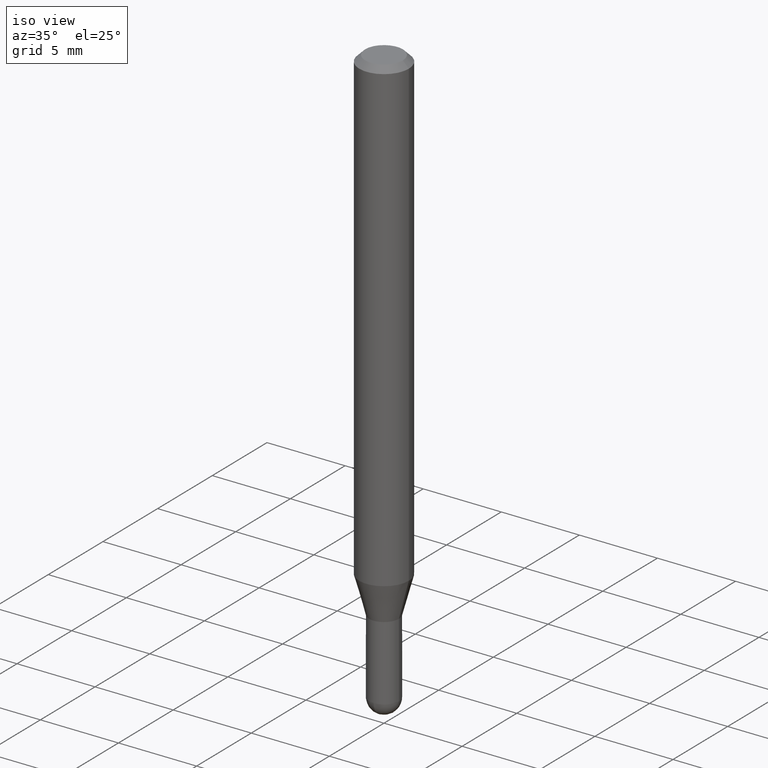
[diagram: clean part render]
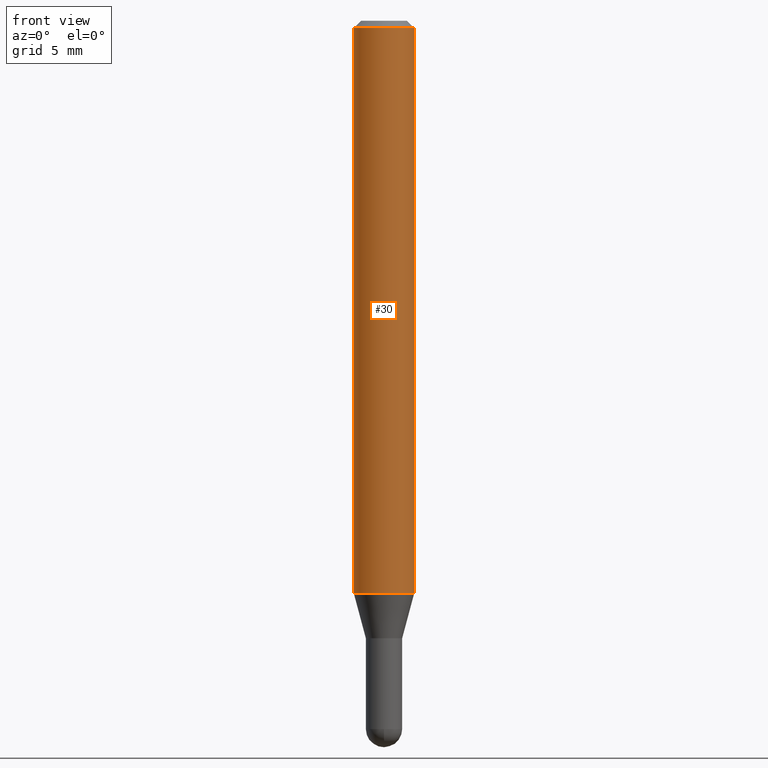
[diagram: tour spotlight — one face highlighted and labeled with its STEP entity id]
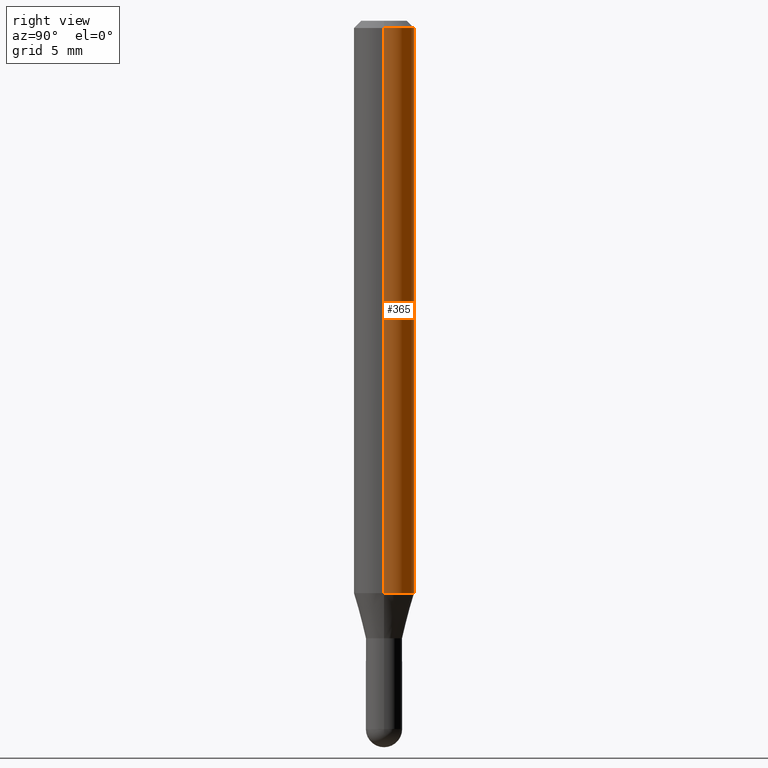
[diagram: tour spotlight — one face highlighted and labeled with its STEP entity id]
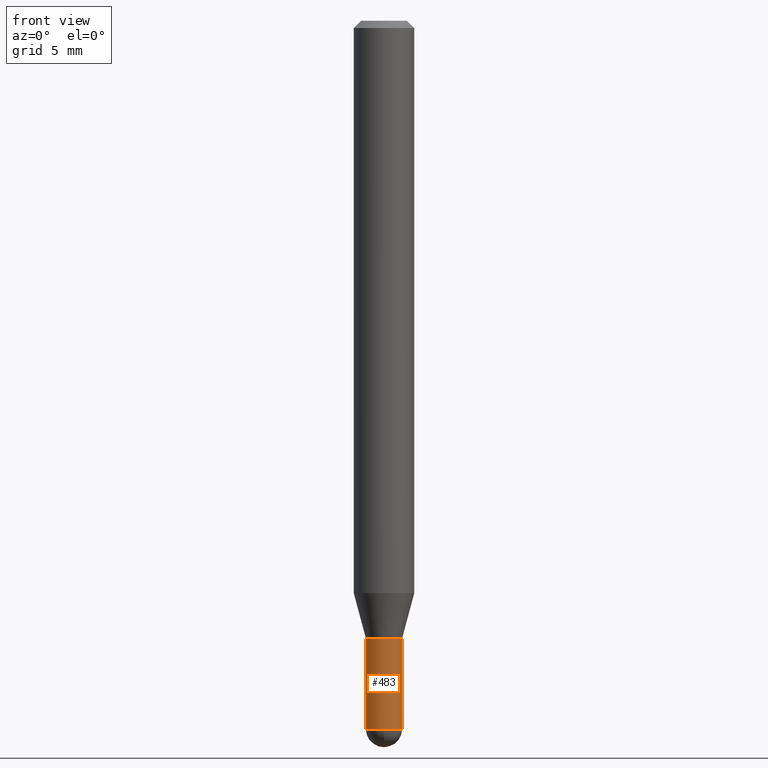
[diagram: tour spotlight — one face highlighted and labeled with its STEP entity id]
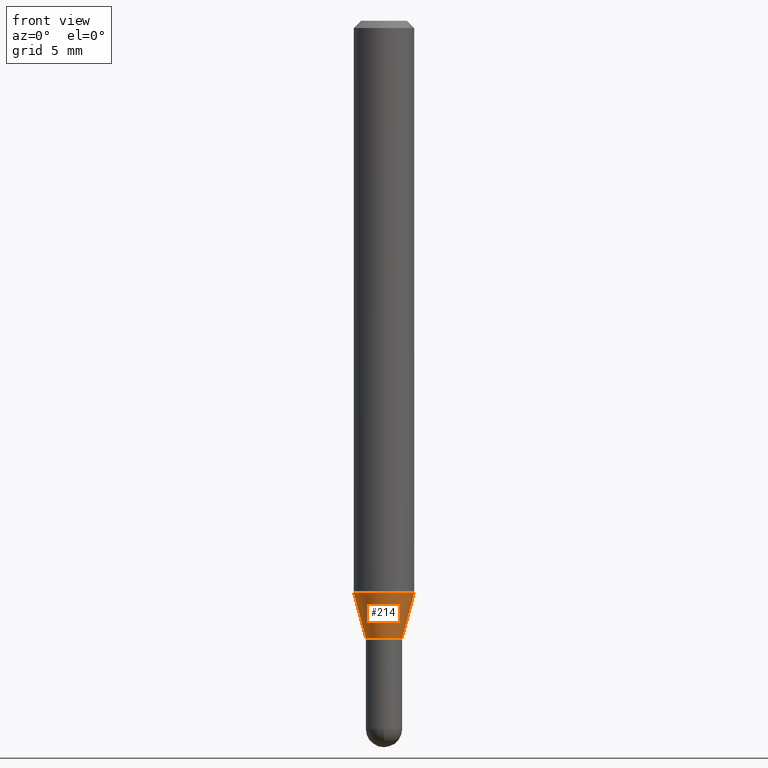
[diagram: tour spotlight — one face highlighted and labeled with its STEP entity id]
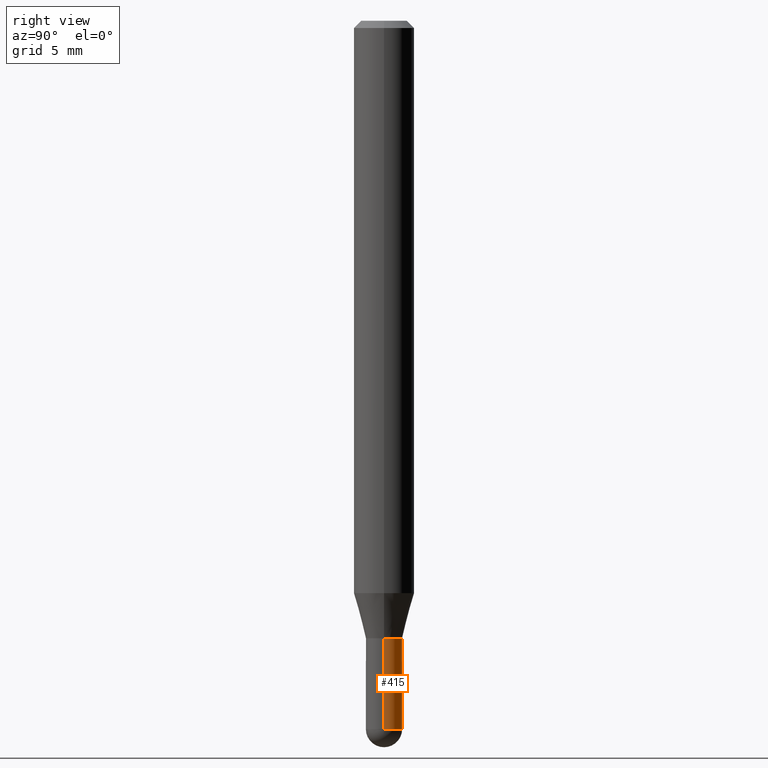
[diagram: tour spotlight — one face highlighted and labeled with its STEP entity id]
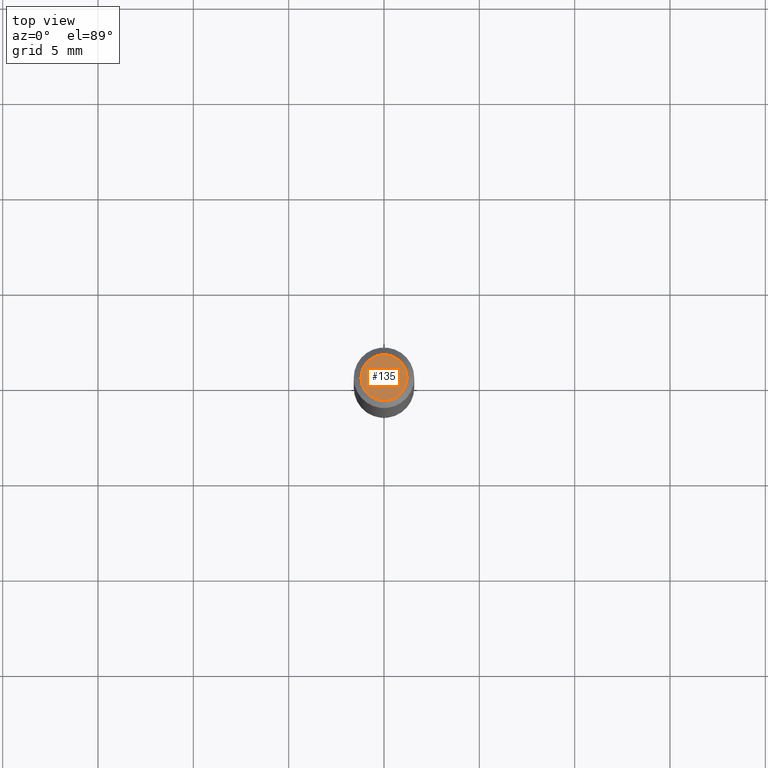
[diagram: tour spotlight — one face highlighted and labeled with its STEP entity id]
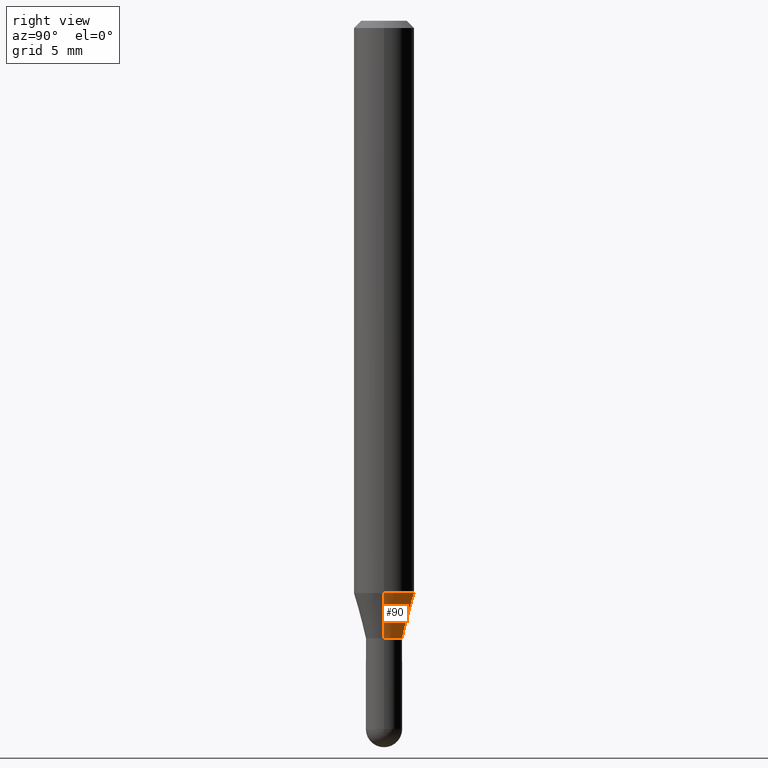
[diagram: tour spotlight — one face highlighted and labeled with its STEP entity id]
A machine part: a face-by-face anatomy tour. The part has 17 B-rep faces; the first image is the clean iso view, then the 7 largest visible faces are spotlighted one at a time (largest first), each with its STEP entity span.

Face 1 — front view, entity #30. In plain terms, the highlighted cylindrical surface (edge-blend (fillet) strip) has radius 1.5875 mm, axis along (-0, 0, 1).
Definition (entity closure, byte-faithful):
#9 = LINE ( 'NONE', #508, #94 ) ;
#20 = ORIENTED_EDGE ( 'NONE', *, *, #202, .F. ) ;
#30 = ADVANCED_FACE ( 'NONE', ( #337 ), #335, .T. ) ;
#36 = DIRECTION ( 'NONE',  ( -2.445468806185136597E-29, 3.491481338843145583E-15, 1.000000000000000000 ) ) ;
#40 = CIRCLE ( 'NONE', #102, 0.06250000000000000000 ) ;
#42 = DIRECTION ( 'NONE',  ( 1.000000000000000000, -6.982962677686266711E-15, 4.876176775795935793E-29 ) ) ;
#75 = CARTESIAN_POINT ( 'NONE',  ( 0.000000000000000000, 0.000000000000000000, 0.000000000000000000 ) ) ;
#94 = VECTOR ( 'NONE', #197, 39.37007874015748143 ) ;
#102 = AXIS2_PLACEMENT_3D ( 'NONE', #313, #119, #435 ) ;
#109 = CARTESIAN_POINT ( 'NONE',  ( 0.06250000000000000000, -4.888073874380391431E-16, -0.01500000000000006710 ) ) ;
#113 = EDGE_CURVE ( 'NONE', #255, #326, #149, .T. ) ;
#114 = DIRECTION ( 'NONE',  ( -2.445468806185136597E-29, 3.491481338843145583E-15, 1.000000000000000000 ) ) ;
#116 = CARTESIAN_POINT ( 'NONE',  ( 3.668203209277721290E-31, -5.237222008264741202E-17, -0.01500000000000006710 ) ) ;
#119 = DIRECTION ( 'NONE',  ( -2.445468806185136597E-29, 3.491481338843145583E-15, 1.000000000000000000 ) ) ;
#123 = CIRCLE ( 'NONE', #241, 0.06250000000000000000 ) ;
#133 = ORIENTED_EDGE ( 'NONE', *, *, #113, .T. ) ;
#149 = LINE ( 'NONE', #307, #285 ) ;
#162 = EDGE_CURVE ( 'NONE', #501, #326, #123, .T. ) ;
#197 = DIRECTION ( 'NONE',  ( -2.445468806185136877E-29, 3.491481338843145188E-15, 1.000000000000000000 ) ) ;
#202 = EDGE_CURVE ( 'NONE', #280, #501, #9, .T. ) ;
#228 = DIRECTION ( 'NONE',  ( -2.445468806185136877E-29, 3.491481338843145188E-15, 1.000000000000000000 ) ) ;
#241 = AXIS2_PLACEMENT_3D ( 'NONE', #116, #114, #416 ) ;
#255 = VERTEX_POINT ( 'NONE', #457 ) ;
#264 = CARTESIAN_POINT ( 'NONE',  ( -0.06250000000000000000, -1.645036431825758273E-15, -0.01500000000000006710 ) ) ;
#280 = VERTEX_POINT ( 'NONE', #324 ) ;
#285 = VECTOR ( 'NONE', #228, 39.37007874015748143 ) ;
#307 = CARTESIAN_POINT ( 'NONE',  ( 0.06250000000000000000, -4.364351673553916694E-16, 3.047610484872459871E-30 ) ) ;
#313 = CARTESIAN_POINT ( 'NONE',  ( 2.889807382060866226E-29, -4.125879063268994698E-15, -1.181698729810782167 ) ) ;
#324 = CARTESIAN_POINT ( 'NONE',  ( -0.06250000000000000000, -3.681789853418932082E-15, -1.181698729810782167 ) ) ;
#326 = VERTEX_POINT ( 'NONE', #109 ) ;
#335 = CYLINDRICAL_SURFACE ( 'NONE', #497, 0.06250000000000000000 ) ;
#337 = FACE_OUTER_BOUND ( 'NONE', #484, .T. ) ;
#349 = ORIENTED_EDGE ( 'NONE', *, *, #162, .F. ) ;
#390 = ORIENTED_EDGE ( 'NONE', *, *, #409, .T. ) ;
#409 = EDGE_CURVE ( 'NONE', #280, #255, #40, .T. ) ;
#416 = DIRECTION ( 'NONE',  ( 1.000000000000000000, -6.982962677686266711E-15, 0.000000000000000000 ) ) ;
#435 = DIRECTION ( 'NONE',  ( 1.000000000000000000, -6.982962677686270655E-15, 0.000000000000000000 ) ) ;
#457 = CARTESIAN_POINT ( 'NONE',  ( 0.06250000000000000000, -4.562314230624385579E-15, -1.181698729810782167 ) ) ;
#484 = EDGE_LOOP ( 'NONE', ( #20, #390, #133, #349 ) ) ;
#497 = AXIS2_PLACEMENT_3D ( 'NONE', #75, #36, #42 ) ;
#501 = VERTEX_POINT ( 'NONE', #264 ) ;
#508 = CARTESIAN_POINT ( 'NONE',  ( -0.06250000000000000000, 4.440892098500626162E-16, -3.074334431409316114E-30 ) ) ;

Face 2 — right view, entity #365. In plain terms, the highlighted cylindrical surface (edge-blend (fillet) strip) has radius 1.5875 mm, axis along (-0, 0, 1).
Definition (entity closure, byte-faithful):
#9 = LINE ( 'NONE', #508, #94 ) ;
#22 = EDGE_CURVE ( 'NONE', #255, #280, #276, .T. ) ;
#23 = ORIENTED_EDGE ( 'NONE', *, *, #113, .F. ) ;
#33 = ORIENTED_EDGE ( 'NONE', *, *, #127, .F. ) ;
#37 = DIRECTION ( 'NONE',  ( 1.000000000000000000, -6.982962677686270655E-15, 0.000000000000000000 ) ) ;
#53 = ORIENTED_EDGE ( 'NONE', *, *, #22, .T. ) ;
#79 = CARTESIAN_POINT ( 'NONE',  ( 2.889807382060866226E-29, -4.125879063268994698E-15, -1.181698729810782167 ) ) ;
#81 = FACE_OUTER_BOUND ( 'NONE', #321, .T. ) ;
#94 = VECTOR ( 'NONE', #197, 39.37007874015748143 ) ;
#109 = CARTESIAN_POINT ( 'NONE',  ( 0.06250000000000000000, -4.888073874380391431E-16, -0.01500000000000006710 ) ) ;
#113 = EDGE_CURVE ( 'NONE', #255, #326, #149, .T. ) ;
#118 = CIRCLE ( 'NONE', #358, 0.06250000000000000000 ) ;
#127 = EDGE_CURVE ( 'NONE', #326, #501, #118, .T. ) ;
#149 = LINE ( 'NONE', #307, #285 ) ;
#163 = CARTESIAN_POINT ( 'NONE',  ( 0.000000000000000000, 0.000000000000000000, 0.000000000000000000 ) ) ;
#193 = CYLINDRICAL_SURFACE ( 'NONE', #317, 0.06250000000000000000 ) ;
#197 = DIRECTION ( 'NONE',  ( -2.445468806185136877E-29, 3.491481338843145188E-15, 1.000000000000000000 ) ) ;
#198 = DIRECTION ( 'NONE',  ( -2.445468806185136597E-29, 3.491481338843145583E-15, 1.000000000000000000 ) ) ;
#202 = EDGE_CURVE ( 'NONE', #280, #501, #9, .T. ) ;
#228 = DIRECTION ( 'NONE',  ( -2.445468806185136877E-29, 3.491481338843145188E-15, 1.000000000000000000 ) ) ;
#253 = AXIS2_PLACEMENT_3D ( 'NONE', #79, #198, #37 ) ;
#255 = VERTEX_POINT ( 'NONE', #457 ) ;
#264 = CARTESIAN_POINT ( 'NONE',  ( -0.06250000000000000000, -1.645036431825758273E-15, -0.01500000000000006710 ) ) ;
#265 = DIRECTION ( 'NONE',  ( 1.000000000000000000, -6.982962677686266711E-15, 0.000000000000000000 ) ) ;
#276 = CIRCLE ( 'NONE', #253, 0.06250000000000000000 ) ;
#280 = VERTEX_POINT ( 'NONE', #324 ) ;
#285 = VECTOR ( 'NONE', #228, 39.37007874015748143 ) ;
#307 = CARTESIAN_POINT ( 'NONE',  ( 0.06250000000000000000, -4.364351673553916694E-16, 3.047610484872459871E-30 ) ) ;
#308 = DIRECTION ( 'NONE',  ( 1.000000000000000000, -6.982962677686266711E-15, 4.876176775795935793E-29 ) ) ;
#317 = AXIS2_PLACEMENT_3D ( 'NONE', #163, #477, #308 ) ;
#321 = EDGE_LOOP ( 'NONE', ( #53, #397, #33, #23 ) ) ;
#324 = CARTESIAN_POINT ( 'NONE',  ( -0.06250000000000000000, -3.681789853418932082E-15, -1.181698729810782167 ) ) ;
#326 = VERTEX_POINT ( 'NONE', #109 ) ;
#358 = AXIS2_PLACEMENT_3D ( 'NONE', #465, #384, #265 ) ;
#365 = ADVANCED_FACE ( 'NONE', ( #81 ), #193, .T. ) ;
#384 = DIRECTION ( 'NONE',  ( -2.445468806185136597E-29, 3.491481338843145583E-15, 1.000000000000000000 ) ) ;
#397 = ORIENTED_EDGE ( 'NONE', *, *, #202, .T. ) ;
#457 = CARTESIAN_POINT ( 'NONE',  ( 0.06250000000000000000, -4.562314230624385579E-15, -1.181698729810782167 ) ) ;
#465 = CARTESIAN_POINT ( 'NONE',  ( 3.668203209277721290E-31, -5.237222008264741202E-17, -0.01500000000000006710 ) ) ;
#477 = DIRECTION ( 'NONE',  ( -2.445468806185136597E-29, 3.491481338843145583E-15, 1.000000000000000000 ) ) ;
#501 = VERTEX_POINT ( 'NONE', #264 ) ;
#508 = CARTESIAN_POINT ( 'NONE',  ( -0.06250000000000000000, 4.440892098500626162E-16, -3.074334431409316114E-30 ) ) ;

Face 3 — front view, entity #483. In plain terms, the highlighted cylindrical surface (edge-blend (fillet) strip) has radius 0.9525 mm, axis along (-0, 0, 1).
Definition (entity closure, byte-faithful):
#12 = ORIENTED_EDGE ( 'NONE', *, *, #429, .T. ) ;
#16 = DIRECTION ( 'NONE',  ( 1.000000000000000000, -6.982962677686280121E-15, 0.000000000000000000 ) ) ;
#31 = VERTEX_POINT ( 'NONE', #153 ) ;
#44 = CARTESIAN_POINT ( 'NONE',  ( 0.000000000000000000, 0.000000000000000000, 0.000000000000000000 ) ) ;
#80 = CIRCLE ( 'NONE', #189, 0.03749999999999993616 ) ;
#92 = DIRECTION ( 'NONE',  ( 1.000000000000000000, -6.982962677686268288E-15, 4.876176775795935793E-29 ) ) ;
#106 = EDGE_CURVE ( 'NONE', #238, #286, #229, .T. ) ;
#153 = CARTESIAN_POINT ( 'NONE',  ( 0.03749999999999993616, -5.040826182954790742E-15, -1.462500000000000133 ) ) ;
#165 = EDGE_CURVE ( 'NONE', #499, #31, #391, .T. ) ;
#168 = CYLINDRICAL_SURFACE ( 'NONE', #379, 0.03749999999999996392 ) ;
#174 = LINE ( 'NONE', #368, #208 ) ;
#189 = AXIS2_PLACEMENT_3D ( 'NONE', #444, #353, #16 ) ;
#191 = DIRECTION ( 'NONE',  ( -2.445468806185136597E-29, 3.491481338843145583E-15, 1.000000000000000000 ) ) ;
#205 = FACE_OUTER_BOUND ( 'NONE', #216, .T. ) ;
#208 = VECTOR ( 'NONE', #446, 39.37007874015748143 ) ;
#210 = CARTESIAN_POINT ( 'NONE',  ( 0.03749999999999999861, -4.713499807438246596E-15, -1.275000000000000133 ) ) ;
#216 = EDGE_LOOP ( 'NONE', ( #413, #12, #236, #274, #493 ) ) ;
#217 = AXIS2_PLACEMENT_3D ( 'NONE', #301, #191, #258 ) ;
#229 = CIRCLE ( 'NONE', #436, 0.03749999999999999861 ) ;
#232 = DIRECTION ( 'NONE',  ( -2.445468806185136877E-29, 3.491481338843145188E-15, 1.000000000000000000 ) ) ;
#236 = ORIENTED_EDGE ( 'NONE', *, *, #165, .T. ) ;
#238 = VERTEX_POINT ( 'NONE', #408 ) ;
#239 = EDGE_CURVE ( 'NONE', #434, #238, #174, .T. ) ;
#258 = DIRECTION ( 'NONE',  ( 1.000000000000000000, -6.982962677686280121E-15, 0.000000000000000000 ) ) ;
#274 = ORIENTED_EDGE ( 'NONE', *, *, #332, .T. ) ;
#286 = VERTEX_POINT ( 'NONE', #210 ) ;
#301 = CARTESIAN_POINT ( 'NONE',  ( 3.576498129045762161E-29, -5.106291458058100676E-15, -1.462500000000000133 ) ) ;
#332 = EDGE_CURVE ( 'NONE', #31, #286, #342, .T. ) ;
#342 = LINE ( 'NONE', #473, #498 ) ;
#353 = DIRECTION ( 'NONE',  ( -2.445468806185136597E-29, 3.491481338843145583E-15, 1.000000000000000000 ) ) ;
#368 = CARTESIAN_POINT ( 'NONE',  ( -0.03749999999999996392, 2.664535259100373133E-16, -1.844600658845588057E-30 ) ) ;
#379 = AXIS2_PLACEMENT_3D ( 'NONE', #44, #442, #92 ) ;
#380 = CARTESIAN_POINT ( 'NONE',  ( 3.117972727886049049E-29, -4.451638707025011594E-15, -1.275000000000000133 ) ) ;
#386 = DIRECTION ( 'NONE',  ( -2.445468806185136597E-29, 3.491481338843145583E-15, 1.000000000000000000 ) ) ;
#391 = CIRCLE ( 'NONE', #217, 0.03749999999999993616 ) ;
#408 = CARTESIAN_POINT ( 'NONE',  ( -0.03749999999999999861, -4.512511556631519117E-15, -1.275000000000000133 ) ) ;
#413 = ORIENTED_EDGE ( 'NONE', *, *, #239, .F. ) ;
#429 = EDGE_CURVE ( 'NONE', #434, #499, #80, .T. ) ;
#434 = VERTEX_POINT ( 'NONE', #488 ) ;
#436 = AXIS2_PLACEMENT_3D ( 'NONE', #380, #386, #472 ) ;
#442 = DIRECTION ( 'NONE',  ( -2.445468806185136597E-29, 3.491481338843145583E-15, 1.000000000000000000 ) ) ;
#444 = CARTESIAN_POINT ( 'NONE',  ( 3.576498129045762161E-29, -5.106291458058100676E-15, -1.462500000000000133 ) ) ;
#446 = DIRECTION ( 'NONE',  ( -2.445468806185136877E-29, 3.491481338843145188E-15, 1.000000000000000000 ) ) ;
#471 = CARTESIAN_POINT ( 'NONE',  ( -2.664535259100019132E-16, -0.03750000000000512645, -1.462500000000000133 ) ) ;
#472 = DIRECTION ( 'NONE',  ( 1.000000000000000000, -6.982962677686268288E-15, 0.000000000000000000 ) ) ;
#473 = CARTESIAN_POINT ( 'NONE',  ( 0.03749999999999996392, -2.618611004132348044E-16, 1.828566290923474171E-30 ) ) ;
#483 = ADVANCED_FACE ( 'NONE', ( #205 ), #168, .T. ) ;
#488 = CARTESIAN_POINT ( 'NONE',  ( -0.03749999999999993616, -4.512511556631519117E-15, -1.462500000000000133 ) ) ;
#493 = ORIENTED_EDGE ( 'NONE', *, *, #106, .F. ) ;
#498 = VECTOR ( 'NONE', #232, 39.37007874015748143 ) ;
#499 = VERTEX_POINT ( 'NONE', #471 ) ;

Face 4 — front view, entity #214. In plain terms, the highlighted conical surface has half-angle 15 deg.
Definition (entity closure, byte-faithful):
#3 = AXIS2_PLACEMENT_3D ( 'NONE', #77, #303, #199 ) ;
#17 = DIRECTION ( 'NONE',  ( -0.2588190451025291217, 5.211531920934597585E-15, 0.9659258262890659807 ) ) ;
#32 = LINE ( 'NONE', #104, #50 ) ;
#40 = CIRCLE ( 'NONE', #102, 0.06250000000000000000 ) ;
#49 = ORIENTED_EDGE ( 'NONE', *, *, #309, .F. ) ;
#50 = VECTOR ( 'NONE', #166, 39.37007874015748143 ) ;
#56 = CIRCLE ( 'NONE', #3, 0.03750000000000019984 ) ;
#77 = CARTESIAN_POINT ( 'NONE',  ( 3.117972727886049049E-29, -4.451638707025011594E-15, -1.275000000000000133 ) ) ;
#102 = AXIS2_PLACEMENT_3D ( 'NONE', #313, #119, #435 ) ;
#104 = CARTESIAN_POINT ( 'NONE',  ( 0.03750000000000019984, -4.713499807438247385E-15, -1.275000000000000133 ) ) ;
#107 = FACE_OUTER_BOUND ( 'NONE', #405, .T. ) ;
#119 = DIRECTION ( 'NONE',  ( -2.445468806185136597E-29, 3.491481338843145583E-15, 1.000000000000000000 ) ) ;
#159 = CARTESIAN_POINT ( 'NONE',  ( 0.03750000000000019984, -4.713499807438247385E-15, -1.275000000000000133 ) ) ;
#160 = AXIS2_PLACEMENT_3D ( 'NONE', #224, #441, #399 ) ;
#166 = DIRECTION ( 'NONE',  ( 0.2588190451025291217, 1.565188264969560831E-15, 0.9659258262890659807 ) ) ;
#187 = ORIENTED_EDGE ( 'NONE', *, *, #387, .T. ) ;
#199 = DIRECTION ( 'NONE',  ( 1.000000000000000000, -6.982962677686257244E-15, 0.000000000000000000 ) ) ;
#206 = ORIENTED_EDGE ( 'NONE', *, *, #409, .F. ) ;
#214 = ADVANCED_FACE ( 'NONE', ( #107 ), #505, .T. ) ;
#224 = CARTESIAN_POINT ( 'NONE',  ( 3.117972727886049049E-29, -4.451638707025011594E-15, -1.275000000000000133 ) ) ;
#243 = VECTOR ( 'NONE', #17, 39.37007874015748143 ) ;
#255 = VERTEX_POINT ( 'NONE', #457 ) ;
#270 = VERTEX_POINT ( 'NONE', #159 ) ;
#280 = VERTEX_POINT ( 'NONE', #324 ) ;
#303 = DIRECTION ( 'NONE',  ( -2.445468806185136597E-29, 3.491481338843145583E-15, 1.000000000000000000 ) ) ;
#309 = EDGE_CURVE ( 'NONE', #491, #280, #354, .T. ) ;
#313 = CARTESIAN_POINT ( 'NONE',  ( 2.889807382060866226E-29, -4.125879063268994698E-15, -1.181698729810782167 ) ) ;
#324 = CARTESIAN_POINT ( 'NONE',  ( -0.06250000000000000000, -3.681789853418932082E-15, -1.181698729810782167 ) ) ;
#354 = LINE ( 'NONE', #486, #243 ) ;
#375 = ORIENTED_EDGE ( 'NONE', *, *, #438, .T. ) ;
#387 = EDGE_CURVE ( 'NONE', #491, #270, #56, .T. ) ;
#399 = DIRECTION ( 'NONE',  ( 1.000000000000000000, -6.982962677686257244E-15, 0.000000000000000000 ) ) ;
#405 = EDGE_LOOP ( 'NONE', ( #49, #187, #375, #206 ) ) ;
#409 = EDGE_CURVE ( 'NONE', #280, #255, #40, .T. ) ;
#433 = CARTESIAN_POINT ( 'NONE',  ( -0.03750000000000019984, -3.933487517266952343E-15, -1.275000000000000133 ) ) ;
#435 = DIRECTION ( 'NONE',  ( 1.000000000000000000, -6.982962677686270655E-15, 0.000000000000000000 ) ) ;
#438 = EDGE_CURVE ( 'NONE', #270, #255, #32, .T. ) ;
#441 = DIRECTION ( 'NONE',  ( -2.445468806185136597E-29, 3.491481338843145583E-15, 1.000000000000000000 ) ) ;
#457 = CARTESIAN_POINT ( 'NONE',  ( 0.06250000000000000000, -4.562314230624385579E-15, -1.181698729810782167 ) ) ;
#486 = CARTESIAN_POINT ( 'NONE',  ( -0.03750000000000019984, -4.185185181114972604E-15, -1.275000000000000133 ) ) ;
#491 = VERTEX_POINT ( 'NONE', #433 ) ;
#505 = CONICAL_SURFACE ( 'NONE', #160, 0.03750000000000019984, 0.2617993877991580676 ) ;

Face 5 — right view, entity #415. In plain terms, the highlighted cylindrical surface (edge-blend (fillet) strip) has radius 0.9525 mm, axis along (-0, 0, 1).
Definition (entity closure, byte-faithful):
#11 = DIRECTION ( 'NONE',  ( 1.000000000000000000, -6.982962677686280121E-15, 0.000000000000000000 ) ) ;
#29 = ORIENTED_EDGE ( 'NONE', *, *, #273, .F. ) ;
#31 = VERTEX_POINT ( 'NONE', #153 ) ;
#46 = CARTESIAN_POINT ( 'NONE',  ( 3.576498129045762161E-29, -5.106291458058100676E-15, -1.462500000000000133 ) ) ;
#67 = ORIENTED_EDGE ( 'NONE', *, *, #239, .T. ) ;
#74 = DIRECTION ( 'NONE',  ( -2.445468806185136597E-29, 3.491481338843145583E-15, 1.000000000000000000 ) ) ;
#83 = CARTESIAN_POINT ( 'NONE',  ( 3.117972727886049049E-29, -4.451638707025011594E-15, -1.275000000000000133 ) ) ;
#85 = CIRCLE ( 'NONE', #428, 0.03749999999999999861 ) ;
#120 = DIRECTION ( 'NONE',  ( -2.445468806185136597E-29, 3.491481338843145583E-15, 1.000000000000000000 ) ) ;
#144 = CIRCLE ( 'NONE', #427, 0.03749999999999993616 ) ;
#153 = CARTESIAN_POINT ( 'NONE',  ( 0.03749999999999993616, -5.040826182954790742E-15, -1.462500000000000133 ) ) ;
#156 = DIRECTION ( 'NONE',  ( 1.000000000000000000, -6.982962677686280121E-15, 0.000000000000000000 ) ) ;
#174 = LINE ( 'NONE', #368, #208 ) ;
#192 = EDGE_CURVE ( 'NONE', #401, #434, #144, .T. ) ;
#208 = VECTOR ( 'NONE', #446, 39.37007874015748143 ) ;
#210 = CARTESIAN_POINT ( 'NONE',  ( 0.03749999999999999861, -4.713499807438246596E-15, -1.275000000000000133 ) ) ;
#232 = DIRECTION ( 'NONE',  ( -2.445468806185136877E-29, 3.491481338843145188E-15, 1.000000000000000000 ) ) ;
#237 = FACE_OUTER_BOUND ( 'NONE', #272, .T. ) ;
#238 = VERTEX_POINT ( 'NONE', #408 ) ;
#239 = EDGE_CURVE ( 'NONE', #434, #238, #174, .T. ) ;
#259 = AXIS2_PLACEMENT_3D ( 'NONE', #267, #74, #156 ) ;
#267 = CARTESIAN_POINT ( 'NONE',  ( 3.576498129045762161E-29, -5.106291458058100676E-15, -1.462500000000000133 ) ) ;
#271 = CARTESIAN_POINT ( 'NONE',  ( 2.618611004132704018E-16, 0.03749999999999485689, -1.462500000000000133 ) ) ;
#272 = EDGE_LOOP ( 'NONE', ( #278, #67, #29, #323, #359 ) ) ;
#273 = EDGE_CURVE ( 'NONE', #286, #238, #85, .T. ) ;
#278 = ORIENTED_EDGE ( 'NONE', *, *, #192, .T. ) ;
#279 = CARTESIAN_POINT ( 'NONE',  ( 0.000000000000000000, 0.000000000000000000, 0.000000000000000000 ) ) ;
#281 = DIRECTION ( 'NONE',  ( 1.000000000000000000, -6.982962677686268288E-15, 4.876176775795935793E-29 ) ) ;
#286 = VERTEX_POINT ( 'NONE', #210 ) ;
#323 = ORIENTED_EDGE ( 'NONE', *, *, #332, .F. ) ;
#332 = EDGE_CURVE ( 'NONE', #31, #286, #342, .T. ) ;
#342 = LINE ( 'NONE', #473, #498 ) ;
#350 = DIRECTION ( 'NONE',  ( 1.000000000000000000, -6.982962677686268288E-15, 0.000000000000000000 ) ) ;
#359 = ORIENTED_EDGE ( 'NONE', *, *, #395, .T. ) ;
#360 = DIRECTION ( 'NONE',  ( -2.445468806185136597E-29, 3.491481338843145583E-15, 1.000000000000000000 ) ) ;
#368 = CARTESIAN_POINT ( 'NONE',  ( -0.03749999999999996392, 2.664535259100373133E-16, -1.844600658845588057E-30 ) ) ;
#395 = EDGE_CURVE ( 'NONE', #31, #401, #400, .T. ) ;
#400 = CIRCLE ( 'NONE', #259, 0.03749999999999993616 ) ;
#401 = VERTEX_POINT ( 'NONE', #271 ) ;
#402 = CYLINDRICAL_SURFACE ( 'NONE', #420, 0.03749999999999996392 ) ;
#408 = CARTESIAN_POINT ( 'NONE',  ( -0.03749999999999999861, -4.512511556631519117E-15, -1.275000000000000133 ) ) ;
#415 = ADVANCED_FACE ( 'NONE', ( #237 ), #402, .T. ) ;
#420 = AXIS2_PLACEMENT_3D ( 'NONE', #279, #360, #281 ) ;
#427 = AXIS2_PLACEMENT_3D ( 'NONE', #46, #479, #11 ) ;
#428 = AXIS2_PLACEMENT_3D ( 'NONE', #83, #120, #350 ) ;
#434 = VERTEX_POINT ( 'NONE', #488 ) ;
#446 = DIRECTION ( 'NONE',  ( -2.445468806185136877E-29, 3.491481338843145188E-15, 1.000000000000000000 ) ) ;
#473 = CARTESIAN_POINT ( 'NONE',  ( 0.03749999999999996392, -2.618611004132348044E-16, 1.828566290923474171E-30 ) ) ;
#479 = DIRECTION ( 'NONE',  ( -2.445468806185136597E-29, 3.491481338843145583E-15, 1.000000000000000000 ) ) ;
#488 = CARTESIAN_POINT ( 'NONE',  ( -0.03749999999999993616, -4.512511556631519117E-15, -1.462500000000000133 ) ) ;
#498 = VECTOR ( 'NONE', #232, 39.37007874015748143 ) ;

Face 6 — top view, entity #135. In plain terms, the highlighted planar face has unit normal (0, -0, -1).
Definition (entity closure, byte-faithful):
#18 = AXIS2_PLACEMENT_3D ( 'NONE', #480, #447, #439 ) ;
#34 = AXIS2_PLACEMENT_3D ( 'NONE', #155, #190, #510 ) ;
#52 = EDGE_CURVE ( 'NONE', #128, #164, #78, .T. ) ;
#59 = ORIENTED_EDGE ( 'NONE', *, *, #468, .T. ) ;
#70 = AXIS2_PLACEMENT_3D ( 'NONE', #463, #146, #262 ) ;
#78 = CIRCLE ( 'NONE', #34, 0.04749999999999999362 ) ;
#108 = CARTESIAN_POINT ( 'NONE',  ( -0.04749999999999999362, 3.578768372314208041E-16, -6.550023405239862292E-17 ) ) ;
#125 = CIRCLE ( 'NONE', #18, 0.04749999999999999362 ) ;
#128 = VERTEX_POINT ( 'NONE', #257 ) ;
#135 = ADVANCED_FACE ( 'NONE', ( #299 ), #462, .F. ) ;
#146 = DIRECTION ( 'NONE',  ( 2.438088387897960049E-29, -3.491481338843145188E-15, -1.000000000000000000 ) ) ;
#155 = CARTESIAN_POINT ( 'NONE',  ( 1.601787791729603882E-45, -2.286928448837997150E-31, -6.550023405239620703E-17 ) ) ;
#164 = VERTEX_POINT ( 'NONE', #108 ) ;
#183 = EDGE_LOOP ( 'NONE', ( #59, #294 ) ) ;
#190 = DIRECTION ( 'NONE',  ( -2.445468806185136597E-29, 3.491481338843145583E-15, 1.000000000000000000 ) ) ;
#257 = CARTESIAN_POINT ( 'NONE',  ( 0.04749999999999999362, -4.035134999187580595E-16, -6.550023405239363091E-17 ) ) ;
#262 = DIRECTION ( 'NONE',  ( -1.000000000000000000, 6.982962677686265922E-15, -4.876176775795935793E-29 ) ) ;
#294 = ORIENTED_EDGE ( 'NONE', *, *, #52, .T. ) ;
#299 = FACE_OUTER_BOUND ( 'NONE', #183, .T. ) ;
#439 = DIRECTION ( 'NONE',  ( 1.000000000000000000, -6.982962677686267499E-15, 4.868699817970219885E-29 ) ) ;
#447 = DIRECTION ( 'NONE',  ( -2.445468806185136597E-29, 3.491481338843145583E-15, 1.000000000000000000 ) ) ;
#462 = PLANE ( 'NONE',  #70 ) ;
#463 = CARTESIAN_POINT ( 'NONE',  ( 3.316907271900976096E-16, 0.04749999999999999362, -1.985954806212475000E-16 ) ) ;
#468 = EDGE_CURVE ( 'NONE', #164, #128, #125, .T. ) ;
#480 = CARTESIAN_POINT ( 'NONE',  ( 1.601787791729603882E-45, -2.286928448837997150E-31, -6.550023405239620703E-17 ) ) ;
#510 = DIRECTION ( 'NONE',  ( 1.000000000000000000, -6.982962677686267499E-15, 4.868699817970219885E-29 ) ) ;

Face 7 — right view, entity #90. In plain terms, the highlighted conical surface has half-angle 15 deg.
Definition (entity closure, byte-faithful):
#2 = DIRECTION ( 'NONE',  ( 1.000000000000000000, -6.982962677686257244E-15, 0.000000000000000000 ) ) ;
#17 = DIRECTION ( 'NONE',  ( -0.2588190451025291217, 5.211531920934597585E-15, 0.9659258262890659807 ) ) ;
#22 = EDGE_CURVE ( 'NONE', #255, #280, #276, .T. ) ;
#25 = EDGE_LOOP ( 'NONE', ( #64, #459, #374, #481 ) ) ;
#32 = LINE ( 'NONE', #104, #50 ) ;
#37 = DIRECTION ( 'NONE',  ( 1.000000000000000000, -6.982962677686270655E-15, 0.000000000000000000 ) ) ;
#50 = VECTOR ( 'NONE', #166, 39.37007874015748143 ) ;
#64 = ORIENTED_EDGE ( 'NONE', *, *, #293, .T. ) ;
#79 = CARTESIAN_POINT ( 'NONE',  ( 2.889807382060866226E-29, -4.125879063268994698E-15, -1.181698729810782167 ) ) ;
#90 = ADVANCED_FACE ( 'NONE', ( #194 ), #412, .T. ) ;
#104 = CARTESIAN_POINT ( 'NONE',  ( 0.03750000000000019984, -4.713499807438247385E-15, -1.275000000000000133 ) ) ;
#111 = CARTESIAN_POINT ( 'NONE',  ( 3.117972727886049049E-29, -4.451638707025011594E-15, -1.275000000000000133 ) ) ;
#159 = CARTESIAN_POINT ( 'NONE',  ( 0.03750000000000019984, -4.713499807438247385E-15, -1.275000000000000133 ) ) ;
#166 = DIRECTION ( 'NONE',  ( 0.2588190451025291217, 1.565188264969560831E-15, 0.9659258262890659807 ) ) ;
#194 = FACE_OUTER_BOUND ( 'NONE', #25, .T. ) ;
#198 = DIRECTION ( 'NONE',  ( -2.445468806185136597E-29, 3.491481338843145583E-15, 1.000000000000000000 ) ) ;
#230 = CIRCLE ( 'NONE', #277, 0.03750000000000019984 ) ;
#243 = VECTOR ( 'NONE', #17, 39.37007874015748143 ) ;
#253 = AXIS2_PLACEMENT_3D ( 'NONE', #79, #198, #37 ) ;
#255 = VERTEX_POINT ( 'NONE', #457 ) ;
#270 = VERTEX_POINT ( 'NONE', #159 ) ;
#276 = CIRCLE ( 'NONE', #253, 0.06250000000000000000 ) ;
#277 = AXIS2_PLACEMENT_3D ( 'NONE', #495, #366, #449 ) ;
#280 = VERTEX_POINT ( 'NONE', #324 ) ;
#293 = EDGE_CURVE ( 'NONE', #270, #491, #230, .T. ) ;
#309 = EDGE_CURVE ( 'NONE', #491, #280, #354, .T. ) ;
#324 = CARTESIAN_POINT ( 'NONE',  ( -0.06250000000000000000, -3.681789853418932082E-15, -1.181698729810782167 ) ) ;
#340 = DIRECTION ( 'NONE',  ( -2.445468806185136597E-29, 3.491481338843145583E-15, 1.000000000000000000 ) ) ;
#341 = AXIS2_PLACEMENT_3D ( 'NONE', #111, #340, #2 ) ;
#354 = LINE ( 'NONE', #486, #243 ) ;
#366 = DIRECTION ( 'NONE',  ( -2.445468806185136597E-29, 3.491481338843145583E-15, 1.000000000000000000 ) ) ;
#374 = ORIENTED_EDGE ( 'NONE', *, *, #22, .F. ) ;
#412 = CONICAL_SURFACE ( 'NONE', #341, 0.03750000000000019984, 0.2617993877991580676 ) ;
#433 = CARTESIAN_POINT ( 'NONE',  ( -0.03750000000000019984, -3.933487517266952343E-15, -1.275000000000000133 ) ) ;
#438 = EDGE_CURVE ( 'NONE', #270, #255, #32, .T. ) ;
#449 = DIRECTION ( 'NONE',  ( 1.000000000000000000, -6.982962677686257244E-15, 0.000000000000000000 ) ) ;
#457 = CARTESIAN_POINT ( 'NONE',  ( 0.06250000000000000000, -4.562314230624385579E-15, -1.181698729810782167 ) ) ;
#459 = ORIENTED_EDGE ( 'NONE', *, *, #309, .T. ) ;
#481 = ORIENTED_EDGE ( 'NONE', *, *, #438, .F. ) ;
#486 = CARTESIAN_POINT ( 'NONE',  ( -0.03750000000000019984, -4.185185181114972604E-15, -1.275000000000000133 ) ) ;
#491 = VERTEX_POINT ( 'NONE', #433 ) ;
#495 = CARTESIAN_POINT ( 'NONE',  ( 3.117972727886049049E-29, -4.451638707025011594E-15, -1.275000000000000133 ) ) ;